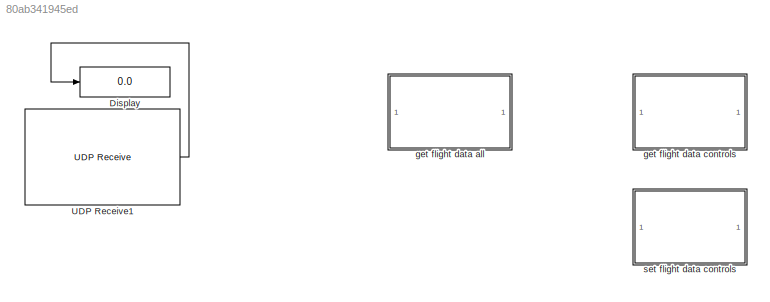
MODEL slx_80ab341945ed
KIND model
CONFIG AbsTol = auto
CONFIG EnableMultiTasking = off
CONFIG FixedStep = auto
CONFIG MaxStep = auto
CONFIG MinStep = auto
CONFIG RelTol = 1e-3
CONFIG SampleTimeConstraint = Unconstrained
CONFIG SolverName = VariableStepAuto
CONFIG StartTime = 0.0
CONFIG StopTime = inf
WORKSPACE source: mxarray member
WORKSPACE enableTransmit = 0
BLOCK [Display] Display
  Commented = on
  Decimation = 1
  Ports = [1]
BLOCK [Reference] UDP Receive1  REF=instrumentlib/UDP Receive
  Commented = on
  Ports = [0, 1]
  SourceBlock = instrumentlib/UDP Receive
  SourceProductBaseCode = IC
  SourceType = UDP Receive
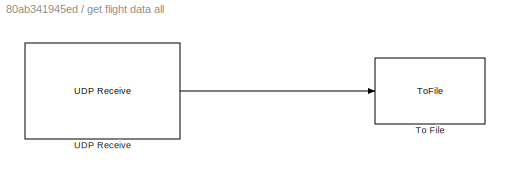
BLOCK [SubSystem] get flight data all
  Commented = on
  Ports = []
  RequestExecContextInheritance = off
BLOCK [ToFile] get flight data all/To File
  Filename = D:\flightDataAll.mat
  MatrixName = flight_data_all
  Ports = [1]
BLOCK [Reference] get flight data all/UDP Receive  REF=instrumentlib/UDP Receive
  Ports = [0, 1]
  SourceBlock = instrumentlib/UDP Receive
  SourceProductBaseCode = IC
  SourceType = UDP Receive
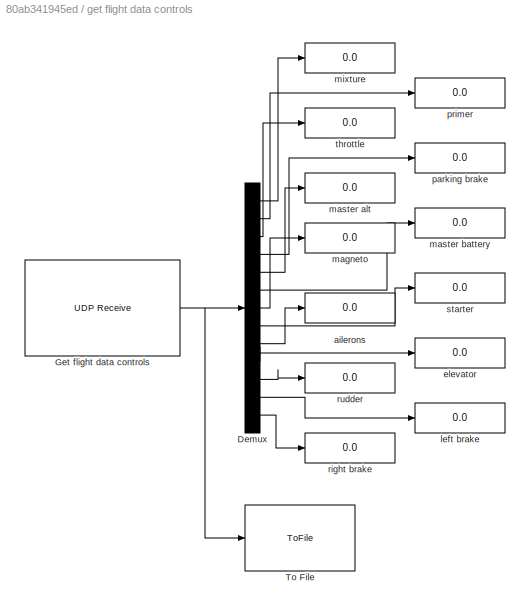
BLOCK [SubSystem] get flight data controls
  Commented = on
  Ports = []
  RequestExecContextInheritance = off
BLOCK [Demux] get flight data controls/Demux
  Outputs = 13
  Ports = [1, 13]
BLOCK [Reference] get flight data controls/Get flight data controls  REF=instrumentlib/UDP Receive
  Ports = [0, 1]
  SourceBlock = instrumentlib/UDP Receive
  SourceProductBaseCode = IC
  SourceType = UDP Receive
BLOCK [ToFile] get flight data controls/To File
  Filename = D:\flightControlsMat.mat
  MatrixName = flight_controls
  Ports = [1]
  SampleTime = 0.01
BLOCK [Display] get flight data controls/ailerons
  Decimation = 1
  Ports = [1]
BLOCK [Display] get flight data controls/elevator
  Decimation = 1
  Ports = [1]
BLOCK [Display] get flight data controls/left brake
  Decimation = 1
  Ports = [1]
BLOCK [Display] get flight data controls/magneto
  Decimation = 1
  Ports = [1]
BLOCK [Display] get flight data controls/master alt
  Decimation = 1
  Ports = [1]
BLOCK [Display] get flight data controls/master battery
  Decimation = 1
  Ports = [1]
BLOCK [Display] get flight data controls/mixture
  Decimation = 1
  Ports = [1]
BLOCK [Display] get flight data controls/parking brake
  Decimation = 1
  Ports = [1]
BLOCK [Display] get flight data controls/primer
  Decimation = 1
  Ports = [1]
BLOCK [Display] get flight data controls/right brake
  Decimation = 1
  Ports = [1]
BLOCK [Display] get flight data controls/rudder
  Decimation = 1
  Ports = [1]
BLOCK [Display] get flight data controls/starter
  Decimation = 1
  Ports = [1]
BLOCK [Display] get flight data controls/throttle
  Decimation = 1
  Ports = [1]
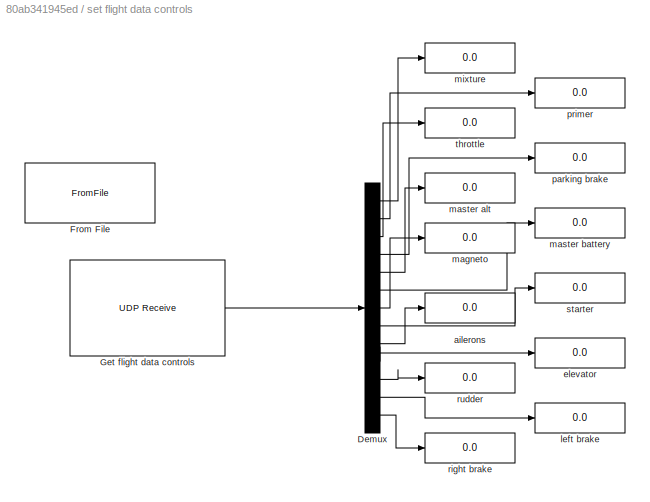
BLOCK [SubSystem] set flight data controls
  Ports = []
  RequestExecContextInheritance = off
BLOCK [Demux] set flight data controls/Demux
  Outputs = 13
  Ports = [1, 13]
BLOCK [FromFile] set flight data controls/From File
  Commented = on
  FileName = D:\flightControlsMat.mat
  SampleTime = 0.01
BLOCK [Reference] set flight data controls/Get flight data controls  REF=instrumentlib/UDP Receive
  Ports = [0, 1]
  SourceBlock = instrumentlib/UDP Receive
  SourceProductBaseCode = IC
  SourceType = UDP Receive
BLOCK [Display] set flight data controls/ailerons
  Decimation = 1
  Ports = [1]
BLOCK [Display] set flight data controls/elevator
  Decimation = 1
  Ports = [1]
BLOCK [Display] set flight data controls/left brake
  Decimation = 1
  Ports = [1]
BLOCK [Display] set flight data controls/magneto
  Decimation = 1
  Ports = [1]
BLOCK [Display] set flight data controls/master alt
  Decimation = 1
  Ports = [1]
BLOCK [Display] set flight data controls/master battery
  Decimation = 1
  Ports = [1]
BLOCK [Display] set flight data controls/mixture
  Decimation = 1
  Ports = [1]
BLOCK [Display] set flight data controls/parking brake
  Decimation = 1
  Ports = [1]
BLOCK [Display] set flight data controls/primer
  Decimation = 1
  Ports = [1]
BLOCK [Display] set flight data controls/right brake
  Decimation = 1
  Ports = [1]
BLOCK [Display] set flight data controls/rudder
  Decimation = 1
  Ports = [1]
BLOCK [Display] set flight data controls/starter
  Decimation = 1
  Ports = [1]
BLOCK [Display] set flight data controls/throttle
  Decimation = 1
  Ports = [1]
LINE UDP Receive1:1 -> Display:1
LINE get flight data all/UDP Receive:1 -> get flight data all/To File:1
LINE get flight data controls/Demux:1 -> get flight data controls/mixture:1
LINE get flight data controls/Demux:10 -> get flight data controls/elevator:1
LINE get flight data controls/Demux:11 -> get flight data controls/rudder:1
LINE get flight data controls/Demux:12 -> get flight data controls/left brake:1
LINE get flight data controls/Demux:13 -> get flight data controls/right brake:1
LINE get flight data controls/Demux:2 -> get flight data controls/primer:1
LINE get flight data controls/Demux:3 -> get flight data controls/throttle:1
LINE get flight data controls/Demux:4 -> get flight data controls/parking brake:1
LINE get flight data controls/Demux:5 -> get flight data controls/master alt:1
LINE get flight data controls/Demux:6 -> get flight data controls/master battery:1
LINE get flight data controls/Demux:7 -> get flight data controls/magneto:1
LINE get flight data controls/Demux:8 -> get flight data controls/starter:1
LINE get flight data controls/Demux:9 -> get flight data controls/ailerons:1
NET get flight data controls/Get flight data controls:1 -> get flight data controls/Demux:1, get flight data controls/To File:1
LINE set flight data controls/Demux:1 -> set flight data controls/mixture:1
LINE set flight data controls/Demux:10 -> set flight data controls/elevator:1
LINE set flight data controls/Demux:11 -> set flight data controls/rudder:1
LINE set flight data controls/Demux:12 -> set flight data controls/left brake:1
LINE set flight data controls/Demux:13 -> set flight data controls/right brake:1
LINE set flight data controls/Demux:2 -> set flight data controls/primer:1
LINE set flight data controls/Demux:3 -> set flight data controls/throttle:1
LINE set flight data controls/Demux:4 -> set flight data controls/parking brake:1
LINE set flight data controls/Demux:5 -> set flight data controls/master alt:1
LINE set flight data controls/Demux:6 -> set flight data controls/master battery:1
LINE set flight data controls/Demux:7 -> set flight data controls/magneto:1
LINE set flight data controls/Demux:8 -> set flight data controls/starter:1
LINE set flight data controls/Demux:9 -> set flight data controls/ailerons:1
LINE set flight data controls/Get flight data controls:1 -> set flight data controls/Demux:1
note: NET lines group one-source signal fan-out (src -> all destinations, sorted); 1:1 wires keep LINE
